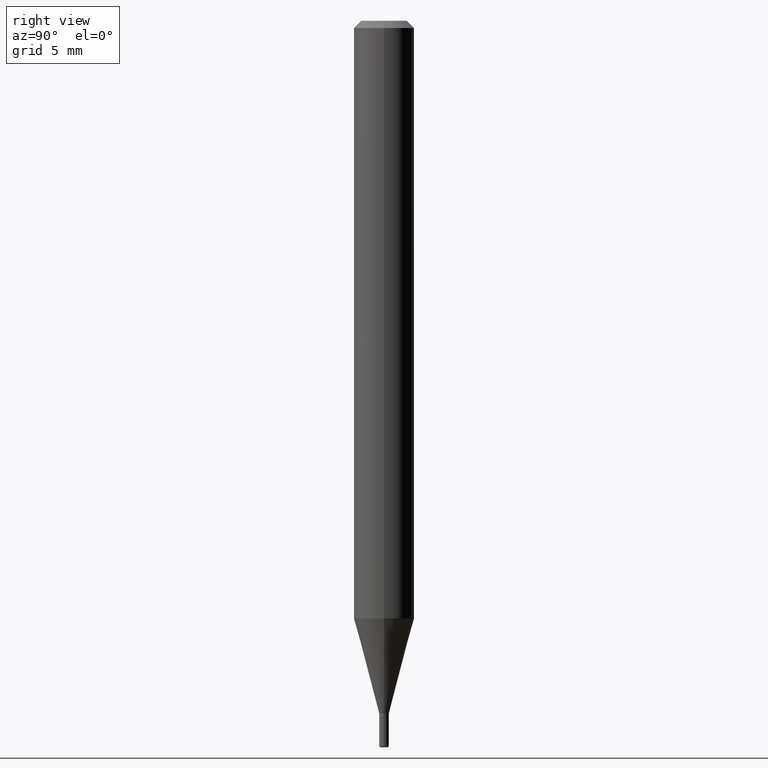
[diagram: clean part render]
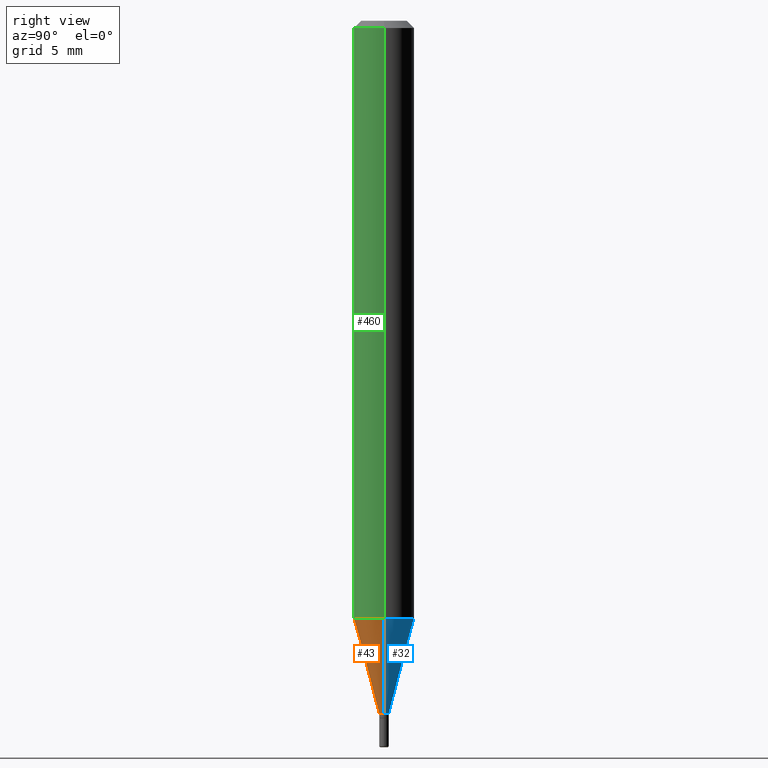
[diagram: same view with three faces highlighted in distinct colors, each labeled with its STEP entity id]
A machine part, right view with three faces highlighted in distinct colors.
Their STEP definitions:

[orange] entity #43 — the highlighted conical surface has half-angle 15 deg.
#1 = CARTESIAN_POINT ( 'NONE',  ( 0.06250000000000001388, -4.745158230013424344E-15, -1.234067332602633682 ) ) ;
#12 = AXIS2_PLACEMENT_3D ( 'NONE', #499, #380, #106 ) ;
#16 = DIRECTION ( 'NONE',  ( 0.2588190451025205729, 1.565188264969627490E-15, 0.9659258262890682012 ) ) ;
#24 = ORIENTED_EDGE ( 'NONE', *, *, #215, .F. ) ;
#26 = CIRCLE ( 'NONE', #498, 0.06250000000000000000 ) ;
#37 = CIRCLE ( 'NONE', #12, 0.009999999999999981126 ) ;
#38 = DIRECTION ( 'NONE',  ( -0.2588190451025205729, 5.211531920934544731E-15, 0.9659258262890682012 ) ) ;
#43 = ADVANCED_FACE ( 'NONE', ( #225 ), #371, .T. ) ;
#57 = LINE ( 'NONE', #370, #363 ) ;
#58 = LINE ( 'NONE', #220, #213 ) ;
#64 = CARTESIAN_POINT ( 'NONE',  ( -0.009999999999999981126, -4.393198946888829488E-15, -1.429999999999999938 ) ) ;
#67 = CARTESIAN_POINT ( 'NONE',  ( 3.497020392844745759E-29, -4.992818314545698211E-15, -1.429999999999999938 ) ) ;
#78 = ORIENTED_EDGE ( 'NONE', *, *, #269, .F. ) ;
#106 = DIRECTION ( 'NONE',  ( 1.000000000000000000, -6.982962677686249356E-15, 0.000000000000000000 ) ) ;
#131 = CARTESIAN_POINT ( 'NONE',  ( 3.017873166611838401E-29, -4.308723062658033463E-15, -1.234067332602633682 ) ) ;
#170 = DIRECTION ( 'NONE',  ( -2.445468806185136597E-29, 3.491481338843145583E-15, 1.000000000000000000 ) ) ;
#194 = DIRECTION ( 'NONE',  ( 1.000000000000000000, -6.982962677686249356E-15, 0.000000000000000000 ) ) ;
#209 = CARTESIAN_POINT ( 'NONE',  ( 0.009999999999999981126, -5.062647941322559931E-15, -1.429999999999999938 ) ) ;
#213 = VECTOR ( 'NONE', #16, 39.37007874015748854 ) ;
#215 = EDGE_CURVE ( 'NONE', #465, #310, #57, .T. ) ;
#220 = CARTESIAN_POINT ( 'NONE',  ( 0.009999999999999981126, -5.062647941322559931E-15, -1.429999999999999938 ) ) ;
#222 = AXIS2_PLACEMENT_3D ( 'NONE', #67, #240, #194 ) ;
#225 = FACE_OUTER_BOUND ( 'NONE', #483, .T. ) ;
#240 = DIRECTION ( 'NONE',  ( -2.445468806185136597E-29, 3.491481338843145583E-15, 1.000000000000000000 ) ) ;
#242 = VERTEX_POINT ( 'NONE', #1 ) ;
#269 = EDGE_CURVE ( 'NONE', #310, #242, #26, .T. ) ;
#280 = CARTESIAN_POINT ( 'NONE',  ( -0.06250000000000001388, -3.864633852807970058E-15, -1.234067332602633682 ) ) ;
#281 = VERTEX_POINT ( 'NONE', #209 ) ;
#310 = VERTEX_POINT ( 'NONE', #280 ) ;
#363 = VECTOR ( 'NONE', #38, 39.37007874015748854 ) ;
#370 = CARTESIAN_POINT ( 'NONE',  ( -0.009999999999999981126, -4.921764040969687340E-15, -1.429999999999999938 ) ) ;
#371 = CONICAL_SURFACE ( 'NONE', #222, 0.009999999999999981126, 0.2617993877991492968 ) ;
#380 = DIRECTION ( 'NONE',  ( -2.445468806185136597E-29, 3.491481338843145583E-15, 1.000000000000000000 ) ) ;
#411 = EDGE_CURVE ( 'NONE', #465, #281, #37, .T. ) ;
#434 = ORIENTED_EDGE ( 'NONE', *, *, #411, .T. ) ;
#439 = ORIENTED_EDGE ( 'NONE', *, *, #445, .T. ) ;
#445 = EDGE_CURVE ( 'NONE', #281, #242, #58, .T. ) ;
#465 = VERTEX_POINT ( 'NONE', #64 ) ;
#472 = DIRECTION ( 'NONE',  ( 1.000000000000000000, -6.982962677686262766E-15, 0.000000000000000000 ) ) ;
#483 = EDGE_LOOP ( 'NONE', ( #24, #434, #439, #78 ) ) ;
#498 = AXIS2_PLACEMENT_3D ( 'NONE', #131, #170, #472 ) ;
#499 = CARTESIAN_POINT ( 'NONE',  ( 3.497020392844745759E-29, -4.992818314545698211E-15, -1.429999999999999938 ) ) ;

[blue] entity #32 — the highlighted conical surface has half-angle 15 deg.
#1 = CARTESIAN_POINT ( 'NONE',  ( 0.06250000000000001388, -4.745158230013424344E-15, -1.234067332602633682 ) ) ;
#4 = DIRECTION ( 'NONE',  ( -2.445468806185136597E-29, 3.491481338843145583E-15, 1.000000000000000000 ) ) ;
#16 = DIRECTION ( 'NONE',  ( 0.2588190451025205729, 1.565188264969627490E-15, 0.9659258262890682012 ) ) ;
#32 = ADVANCED_FACE ( 'NONE', ( #238 ), #448, .T. ) ;
#38 = DIRECTION ( 'NONE',  ( -0.2588190451025205729, 5.211531920934544731E-15, 0.9659258262890682012 ) ) ;
#57 = LINE ( 'NONE', #370, #363 ) ;
#58 = LINE ( 'NONE', #220, #213 ) ;
#64 = CARTESIAN_POINT ( 'NONE',  ( -0.009999999999999981126, -4.393198946888829488E-15, -1.429999999999999938 ) ) ;
#75 = ORIENTED_EDGE ( 'NONE', *, *, #302, .T. ) ;
#76 = DIRECTION ( 'NONE',  ( -2.445468806185136597E-29, 3.491481338843145583E-15, 1.000000000000000000 ) ) ;
#119 = CARTESIAN_POINT ( 'NONE',  ( 3.497020392844745759E-29, -4.992818314545698211E-15, -1.429999999999999938 ) ) ;
#157 = ORIENTED_EDGE ( 'NONE', *, *, #445, .F. ) ;
#167 = DIRECTION ( 'NONE',  ( -2.445468806185136597E-29, 3.491481338843145583E-15, 1.000000000000000000 ) ) ;
#191 = AXIS2_PLACEMENT_3D ( 'NONE', #119, #167, #386 ) ;
#196 = ORIENTED_EDGE ( 'NONE', *, *, #215, .T. ) ;
#209 = CARTESIAN_POINT ( 'NONE',  ( 0.009999999999999981126, -5.062647941322559931E-15, -1.429999999999999938 ) ) ;
#210 = CARTESIAN_POINT ( 'NONE',  ( 3.017873166611838401E-29, -4.308723062658033463E-15, -1.234067332602633682 ) ) ;
#213 = VECTOR ( 'NONE', #16, 39.37007874015748854 ) ;
#215 = EDGE_CURVE ( 'NONE', #465, #310, #57, .T. ) ;
#220 = CARTESIAN_POINT ( 'NONE',  ( 0.009999999999999981126, -5.062647941322559931E-15, -1.429999999999999938 ) ) ;
#238 = FACE_OUTER_BOUND ( 'NONE', #322, .T. ) ;
#242 = VERTEX_POINT ( 'NONE', #1 ) ;
#251 = CIRCLE ( 'NONE', #406, 0.06250000000000000000 ) ;
#280 = CARTESIAN_POINT ( 'NONE',  ( -0.06250000000000001388, -3.864633852807970058E-15, -1.234067332602633682 ) ) ;
#281 = VERTEX_POINT ( 'NONE', #209 ) ;
#302 = EDGE_CURVE ( 'NONE', #281, #465, #442, .T. ) ;
#310 = VERTEX_POINT ( 'NONE', #280 ) ;
#319 = ORIENTED_EDGE ( 'NONE', *, *, #373, .F. ) ;
#322 = EDGE_LOOP ( 'NONE', ( #75, #196, #319, #157 ) ) ;
#344 = DIRECTION ( 'NONE',  ( 1.000000000000000000, -6.982962677686249356E-15, 0.000000000000000000 ) ) ;
#363 = VECTOR ( 'NONE', #38, 39.37007874015748854 ) ;
#370 = CARTESIAN_POINT ( 'NONE',  ( -0.009999999999999981126, -4.921764040969687340E-15, -1.429999999999999938 ) ) ;
#373 = EDGE_CURVE ( 'NONE', #242, #310, #251, .T. ) ;
#386 = DIRECTION ( 'NONE',  ( 1.000000000000000000, -6.982962677686249356E-15, 0.000000000000000000 ) ) ;
#405 = AXIS2_PLACEMENT_3D ( 'NONE', #431, #76, #344 ) ;
#406 = AXIS2_PLACEMENT_3D ( 'NONE', #210, #4, #486 ) ;
#431 = CARTESIAN_POINT ( 'NONE',  ( 3.497020392844745759E-29, -4.992818314545698211E-15, -1.429999999999999938 ) ) ;
#442 = CIRCLE ( 'NONE', #191, 0.009999999999999981126 ) ;
#445 = EDGE_CURVE ( 'NONE', #281, #242, #58, .T. ) ;
#448 = CONICAL_SURFACE ( 'NONE', #405, 0.009999999999999981126, 0.2617993877991492968 ) ;
#465 = VERTEX_POINT ( 'NONE', #64 ) ;
#486 = DIRECTION ( 'NONE',  ( 1.000000000000000000, -6.982962677686262766E-15, 0.000000000000000000 ) ) ;

[green] entity #460 — the highlighted cylindrical surface (edge-blend (fillet) strip) has radius 1.5875 mm, axis along (-0, 0, 1).
#1 = CARTESIAN_POINT ( 'NONE',  ( 0.06250000000000001388, -4.745158230013424344E-15, -1.234067332602633682 ) ) ;
#21 = EDGE_CURVE ( 'NONE', #242, #35, #110, .T. ) ;
#26 = CIRCLE ( 'NONE', #498, 0.06250000000000000000 ) ;
#35 = VERTEX_POINT ( 'NONE', #508 ) ;
#39 = CIRCLE ( 'NONE', #237, 0.06250000000000000000 ) ;
#40 = ORIENTED_EDGE ( 'NONE', *, *, #21, .T. ) ;
#56 = DIRECTION ( 'NONE',  ( 1.000000000000000000, -6.982962677686266711E-15, 4.876176775795935793E-29 ) ) ;
#59 = DIRECTION ( 'NONE',  ( -2.445468806185136877E-29, 3.491481338843145188E-15, 1.000000000000000000 ) ) ;
#72 = AXIS2_PLACEMENT_3D ( 'NONE', #282, #245, #56 ) ;
#110 = LINE ( 'NONE', #158, #255 ) ;
#131 = CARTESIAN_POINT ( 'NONE',  ( 3.017873166611838401E-29, -4.308723062658033463E-15, -1.234067332602633682 ) ) ;
#153 = EDGE_CURVE ( 'NONE', #310, #214, #184, .T. ) ;
#158 = CARTESIAN_POINT ( 'NONE',  ( 0.06250000000000000000, -4.364351673553916694E-16, 3.047610484872459871E-30 ) ) ;
#165 = ORIENTED_EDGE ( 'NONE', *, *, #153, .F. ) ;
#170 = DIRECTION ( 'NONE',  ( -2.445468806185136597E-29, 3.491481338843145583E-15, 1.000000000000000000 ) ) ;
#184 = LINE ( 'NONE', #228, #340 ) ;
#200 = CYLINDRICAL_SURFACE ( 'NONE', #72, 0.06250000000000000000 ) ;
#214 = VERTEX_POINT ( 'NONE', #409 ) ;
#223 = DIRECTION ( 'NONE',  ( -2.445468806185136597E-29, 3.491481338843145583E-15, 1.000000000000000000 ) ) ;
#228 = CARTESIAN_POINT ( 'NONE',  ( -0.06250000000000000000, 4.440892098500626162E-16, -3.074334431409316114E-30 ) ) ;
#229 = ORIENTED_EDGE ( 'NONE', *, *, #269, .T. ) ;
#237 = AXIS2_PLACEMENT_3D ( 'NONE', #303, #223, #305 ) ;
#242 = VERTEX_POINT ( 'NONE', #1 ) ;
#245 = DIRECTION ( 'NONE',  ( -2.445468806185136597E-29, 3.491481338843145583E-15, 1.000000000000000000 ) ) ;
#255 = VECTOR ( 'NONE', #272, 39.37007874015748143 ) ;
#269 = EDGE_CURVE ( 'NONE', #310, #242, #26, .T. ) ;
#272 = DIRECTION ( 'NONE',  ( -2.445468806185136877E-29, 3.491481338843145188E-15, 1.000000000000000000 ) ) ;
#280 = CARTESIAN_POINT ( 'NONE',  ( -0.06250000000000001388, -3.864633852807970058E-15, -1.234067332602633682 ) ) ;
#282 = CARTESIAN_POINT ( 'NONE',  ( 0.000000000000000000, 0.000000000000000000, 0.000000000000000000 ) ) ;
#303 = CARTESIAN_POINT ( 'NONE',  ( 3.668203209277632395E-31, -5.237222008264614861E-17, -0.01499999999999970281 ) ) ;
#305 = DIRECTION ( 'NONE',  ( 1.000000000000000000, -6.982962677686266711E-15, 0.000000000000000000 ) ) ;
#310 = VERTEX_POINT ( 'NONE', #280 ) ;
#340 = VECTOR ( 'NONE', #59, 39.37007874015748143 ) ;
#400 = EDGE_LOOP ( 'NONE', ( #165, #229, #40, #479 ) ) ;
#408 = EDGE_CURVE ( 'NONE', #214, #35, #39, .T. ) ;
#409 = CARTESIAN_POINT ( 'NONE',  ( -0.06250000000000000000, -1.736458431520276866E-15, -0.01499999999999970281 ) ) ;
#460 = ADVANCED_FACE ( 'NONE', ( #469 ), #200, .T. ) ;
#469 = FACE_OUTER_BOUND ( 'NONE', #400, .T. ) ;
#472 = DIRECTION ( 'NONE',  ( 1.000000000000000000, -6.982962677686262766E-15, 0.000000000000000000 ) ) ;
#479 = ORIENTED_EDGE ( 'NONE', *, *, #408, .F. ) ;
#498 = AXIS2_PLACEMENT_3D ( 'NONE', #131, #170, #472 ) ;
#508 = CARTESIAN_POINT ( 'NONE',  ( 0.06250000000000000000, -4.888073874380378612E-16, -0.01499999999999970281 ) ) ;